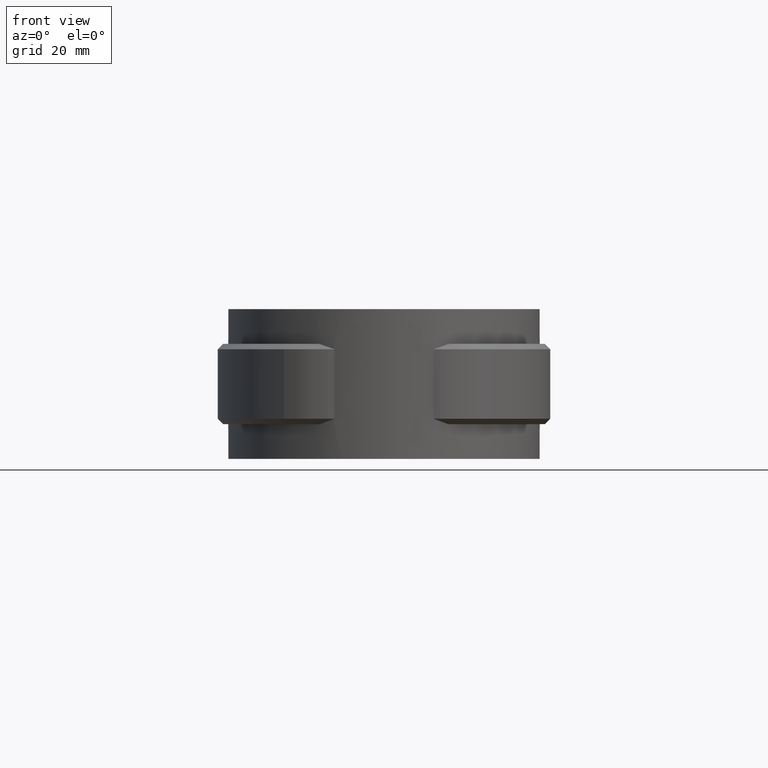
[diagram: clean part render]
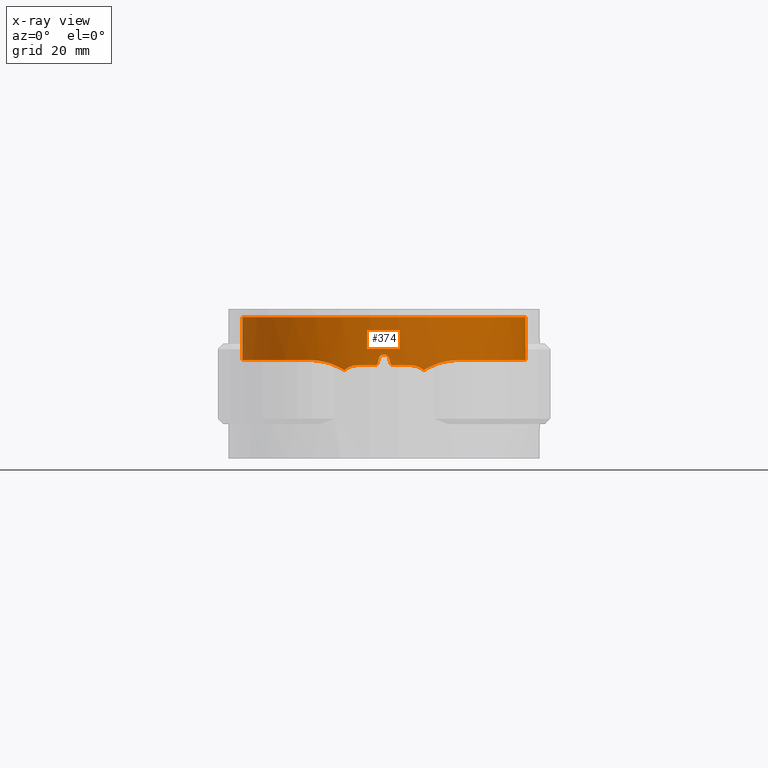
[diagram: x-ray — body ghosted, one internal face saturated and labeled with its STEP entity id]
A machine part, front view, then the same camera in x-ray: the body is ghosted and one INTERNAL B-rep face — a face not visible from any outside direction — is saturated and labeled: STEP entity #374.
In plain terms, the highlighted cylindrical surface (partial cylindrical patch) has radius 26.5 mm, axis along (0, 0, 1).
Its self-contained STEP definition (entity closure, byte-faithful):
#374 = ADVANCED_FACE( '', ( #734 ), #735, .F. );
#734 = FACE_OUTER_BOUND( '', #1663, .T. );
#735 = CYLINDRICAL_SURFACE( '', #1664, 26.5000000000000 );
#1663 = EDGE_LOOP( '', ( #3299, #3300, #3301, #3302, #3303, #3304, #3305, #3306, #3307, #3308, #3309, #3310, #3311, #3312, #3313, #3314, #3315, #3316 ) );
#1664 = AXIS2_PLACEMENT_3D( '', #3317, #3318, #3319 );
#3299 = ORIENTED_EDGE( '', *, *, #7044, .T. );
#3300 = ORIENTED_EDGE( '', *, *, #7009, .T. );
#3301 = ORIENTED_EDGE( '', *, *, #7011, .T. );
#3302 = ORIENTED_EDGE( '', *, *, #7045, .T. );
#3303 = ORIENTED_EDGE( '', *, *, #7046, .T. );
#3304 = ORIENTED_EDGE( '', *, *, #7047, .T. );
#3305 = ORIENTED_EDGE( '', *, *, #7048, .T. );
#3306 = ORIENTED_EDGE( '', *, *, #7049, .T. );
#3307 = ORIENTED_EDGE( '', *, *, #7050, .T. );
#3308 = ORIENTED_EDGE( '', *, *, #7051, .T. );
#3309 = ORIENTED_EDGE( '', *, *, #7052, .T. );
#3310 = ORIENTED_EDGE( '', *, *, #7053, .T. );
#3311 = ORIENTED_EDGE( '', *, *, #7031, .T. );
#3312 = ORIENTED_EDGE( '', *, *, #7054, .F. );
#3313 = ORIENTED_EDGE( '', *, *, #6996, .T. );
#3314 = ORIENTED_EDGE( '', *, *, #7055, .T. );
#3315 = ORIENTED_EDGE( '', *, *, #7027, .T. );
#3316 = ORIENTED_EDGE( '', *, *, #7039, .T. );
#3317 = CARTESIAN_POINT( '', ( 0.000000000000000, 0.000000000000000, 0.000000000000000 ) );
#3318 = DIRECTION( '', ( 0.000000000000000, 0.000000000000000, 1.00000000000000 ) );
#3319 = DIRECTION( '', ( 1.00000000000000, -6.12303176911189E-017, 0.000000000000000 ) );
#6996 = EDGE_CURVE( '', #7994, #7992, #7995, .T. );
#7009 = EDGE_CURVE( '', #8000, #8017, #8019, .T. );
#7011 = EDGE_CURVE( '', #8017, #8020, #8022, .T. );
#7027 = EDGE_CURVE( '', #8050, #8048, #8051, .T. );
#7031 = EDGE_CURVE( '', #8057, #8058, #8059, .T. );
#7039 = EDGE_CURVE( '', #8048, #8071, #8073, .T. );
#7044 = EDGE_CURVE( '', #8071, #8000, #8081, .T. );
#7045 = EDGE_CURVE( '', #8020, #8082, #8083, .T. );
#7046 = EDGE_CURVE( '', #8082, #8084, #8085, .T. );
#7047 = EDGE_CURVE( '', #8084, #8086, #8087, .T. );
#7048 = EDGE_CURVE( '', #8086, #8088, #8089, .T. );
#7049 = EDGE_CURVE( '', #8088, #8090, #8091, .T. );
#7050 = EDGE_CURVE( '', #8090, #8092, #8093, .T. );
#7051 = EDGE_CURVE( '', #8092, #8094, #8095, .T. );
#7052 = EDGE_CURVE( '', #8094, #8096, #8097, .T. );
#7053 = EDGE_CURVE( '', #8096, #8057, #8098, .T. );
#7054 = EDGE_CURVE( '', #7994, #8058, #8099, .T. );
#7055 = EDGE_CURVE( '', #7992, #8050, #8100, .T. );
#7992 = VERTEX_POINT( '', #9768 );
#7994 = VERTEX_POINT( '', #9770 );
#7995 = CIRCLE( '', #9771, 26.5000000000000 );
#8000 = VERTEX_POINT( '', #9777 );
#8017 = VERTEX_POINT( '', #9853 );
#8019 = B_SPLINE_CURVE_WITH_KNOTS( '', 3, ( #9856, #9857, #9858, #9859, #9860, #9861, #9862, #9863, #9864, #9865 ), .UNSPECIFIED., .F., .F., ( 4, 2, 2, 2, 4 ), ( 0.00840987655506248, 0.00908564043803560, 0.00976140432100873, 0.0104371682039819, 0.0111129320869550 ), .UNSPECIFIED. );
#8020 = VERTEX_POINT( '', #9866 );
#8022 = CIRCLE( '', #9869, 26.5000000000000 );
#8048 = VERTEX_POINT( '', #10157 );
#8050 = VERTEX_POINT( '', #10165 );
#8051 = B_SPLINE_CURVE_WITH_KNOTS( '', 3, ( #10166, #10167, #10168, #10169, #10170, #10171, #10172, #10173, #10174, #10175, #10176, #10177, #10178, #10179, #10180, #10181, #10182, #10183, #10184, #10185, #10186, #10187, #10188, #10189, #10190, #10191, #10192, #10193, #10194, #10195, #10196, #10197, #10198, #10199, #10200, #10201, #10202, #10203, #10204, #10205, #10206, #10207, #10208, #10209 ), .UNSPECIFIED., .F., .F., ( 4, 2, 2, 2, 2, 2, 2, 2, 2, 2, 2, 2, 2, 2, 2, 2, 2, 2, 2, 2, 2, 4 ), ( 8.54252242016652E-018, 0.00386953894842184, 0.00773907789684368, 0.00967384737105459, 0.0116086168452655, 0.0154781557936874, 0.0174129252678983, 0.0193476947421092, 0.0232172336905310, 0.0251520031647420, 0.0270867726389529, 0.0309563115873747, 0.0348258505357966, 0.0367606200100075, 0.0386953894842184, 0.0425649284326403, 0.0464344673810622, 0.0503040063294840, 0.0522387758036949, 0.0541735452779059, 0.0580430842263277, 0.0619126231747495 ), .UNSPECIFIED. );
#8057 = VERTEX_POINT( '', #10245 );
#8058 = VERTEX_POINT( '', #10246 );
#8059 = B_SPLINE_CURVE_WITH_KNOTS( '', 3, ( #10247, #10248, #10249, #10250, #10251, #10252, #10253, #10254, #10255, #10256, #10257, #10258, #10259, #10260, #10261, #10262, #10263, #10264, #10265, #10266, #10267, #10268, #10269, #10270, #10271, #10272, #10273, #10274, #10275, #10276, #10277, #10278, #10279, #10280, #10281, #10282, #10283, #10284, #10285, #10286, #10287, #10288, #10289, #10290 ), .UNSPECIFIED., .F., .F., ( 4, 2, 2, 2, 2, 2, 2, 2, 2, 2, 2, 2, 2, 2, 2, 2, 2, 2, 2, 2, 2, 4 ), ( 9.81307786677359E-018, 0.00386953623061383, 0.00773907246122765, 0.00967384057653457, 0.0116086086918415, 0.0154781449224553, 0.0174129130377622, 0.0193476811530691, 0.0232172173836830, 0.0251519854989899, 0.0270867536142968, 0.0309562898449107, 0.0348258260755245, 0.0367605941908314, 0.0386953623061383, 0.0425648985367521, 0.0464344347673660, 0.0503039709979798, 0.0522387391132867, 0.0541735072285936, 0.0580430434592075, 0.0619125796898213 ), .UNSPECIFIED. );
#8071 = VERTEX_POINT( '', #10385 );
#8073 = B_SPLINE_CURVE_WITH_KNOTS( '', 3, ( #10391, #10392, #10393, #10394, #10395, #10396, #10397, #10398, #10399, #10400 ), .UNSPECIFIED., .F., .F., ( 4, 2, 2, 2, 4 ), ( 1.73472347597681E-018, 0.00167477549789548, 0.00334955099579095, 0.00502432649368643, 0.00669910199158190 ), .UNSPECIFIED. );
#8081 = B_SPLINE_CURVE_WITH_KNOTS( '', 3, ( #10429, #10430, #10431, #10432 ), .UNSPECIFIED., .F., .F., ( 4, 4 ), ( 5.06069652024954E-015, 0.00108053833113796 ), .UNSPECIFIED. );
#8082 = VERTEX_POINT( '', #10433 );
#8083 = B_SPLINE_CURVE_WITH_KNOTS( '', 3, ( #10434, #10435, #10436, #10437, #10438, #10439 ), .UNSPECIFIED., .F., .F., ( 4, 2, 4 ), ( 8.20849171219253E-018, 0.000336060167012381, 0.000672120334024754 ), .UNSPECIFIED. );
#8084 = VERTEX_POINT( '', #10440 );
#8085 = ELLIPSE( '', #10441, 120.722283805419, 26.5000000000000 );
#8086 = VERTEX_POINT( '', #10442 );
#8087 = B_SPLINE_CURVE_WITH_KNOTS( '', 3, ( #10443, #10444, #10445, #10446, #10447, #10448, #10449, #10450, #10451, #10452 ), .UNSPECIFIED., .F., .F., ( 4, 2, 2, 2, 4 ), ( 0.000000000000000, 0.000671613818563088, 0.00134322763712618, 0.00201484145568926, 0.00268645527425235 ), .UNSPECIFIED. );
#8088 = VERTEX_POINT( '', #10453 );
#8089 = ELLIPSE( '', #10454, 120.722345388658, 26.5000000000000 );
#8090 = VERTEX_POINT( '', #10455 );
#8091 = B_SPLINE_CURVE_WITH_KNOTS( '', 3, ( #10456, #10457, #10458, #10459, #10460, #10461 ), .UNSPECIFIED., .F., .F., ( 4, 2, 4 ), ( 2.04566856771261E-018, 0.000336065636993404, 0.000672131273986805 ), .UNSPECIFIED. );
#8092 = VERTEX_POINT( '', #10462 );
#8093 = CIRCLE( '', #10463, 26.5000000000000 );
#8094 = VERTEX_POINT( '', #10464 );
#8095 = B_SPLINE_CURVE_WITH_KNOTS( '', 3, ( #10465, #10466, #10467, #10468, #10469, #10470, #10471, #10472, #10473, #10474 ), .UNSPECIFIED., .F., .F., ( 4, 2, 2, 2, 4 ), ( 3.46944695195361E-018, 0.000676414896825245, 0.00135282979365049, 0.00202924469047573, 0.00270565958730097 ), .UNSPECIFIED. );
#8096 = VERTEX_POINT( '', #10475 );
#8097 = B_SPLINE_CURVE_WITH_KNOTS( '', 3, ( #10476, #10477, #10478, #10479 ), .UNSPECIFIED., .F., .F., ( 4, 4 ), ( 0.00823762377729506, 0.00931491977660899 ), .UNSPECIFIED. );
#8098 = B_SPLINE_CURVE_WITH_KNOTS( '', 3, ( #10480, #10481, #10482, #10483, #10484, #10485, #10486, #10487, #10488, #10489 ), .UNSPECIFIED., .F., .F., ( 4, 2, 2, 2, 4 ), ( 0.000000000000000, 0.00166699003343401, 0.00333398006686803, 0.00500097010030204, 0.00666796013373606 ), .UNSPECIFIED. );
#8099 = LINE( '', #10490, #10491 );
#8100 = LINE( '', #10492, #10493 );
#9768 = CARTESIAN_POINT( '', ( 6.04385964912280, 25.8015844579690, 0.000000000000000 ) );
#9770 = CARTESIAN_POINT( '', ( -6.04385964912280, 25.8015844579689, 0.000000000000000 ) );
#9771 = AXIS2_PLACEMENT_3D( '', #13752, #13753, #13754 );
#9777 = CARTESIAN_POINT( '', ( 7.40905339638873, -25.4431902042464, -9.96101167128564 ) );
#9853 = CARTESIAN_POINT( '', ( 5.00000000000000, -26.0240273593462, -9.00000000000000 ) );
#9856 = CARTESIAN_POINT( '', ( 7.40905339638874, -25.4431902042464, -9.96101167128563 ) );
#9857 = CARTESIAN_POINT( '', ( 7.24763662634430, -25.4901947449008, -9.80785554460639 ) );
#9858 = CARTESIAN_POINT( '', ( 7.07408541333312, -25.5390720899026, -9.67215739365102 ) );
#9859 = CARTESIAN_POINT( '', ( 6.70316743055003, -25.6389241983042, -9.43442585938661 ) );
#9860 = CARTESIAN_POINT( '', ( 6.50370235312272, -25.6903936464893, -9.33179261985578 ) );
#9861 = CARTESIAN_POINT( '', ( 6.09403154520617, -25.7906426739549, -9.16807056670148 ) );
#9862 = CARTESIAN_POINT( '', ( 5.88307014533556, -25.8396775127156, -9.10601312208062 ) );
#9863 = CARTESIAN_POINT( '', ( 5.44861472041516, -25.9347651989478, -9.02182452402143 ) );
#9864 = CARTESIAN_POINT( '', ( 5.22445617697157, -25.9809025628126, -8.99999999999997 ) );
#9865 = CARTESIAN_POINT( '', ( 5.00000000000000, -26.0240273593462, -8.99999999999997 ) );
#9866 = CARTESIAN_POINT( '', ( 1.64999999999995, -26.4485821926242, -9.00000000000000 ) );
#9869 = AXIS2_PLACEMENT_3D( '', #13762, #13763, #13764 );
#10157 = CARTESIAN_POINT( '', ( 14.1618058989693, -22.3985100772333, -8.00447351404854 ) );
#10165 = CARTESIAN_POINT( '', ( 6.04385964912280, 25.8015844579689, -8.00552652639570 ) );
#10166 = CARTESIAN_POINT( '', ( 6.04385964912279, 25.8015844579690, -8.00552652639571 ) );
#10167 = CARTESIAN_POINT( '', ( 7.31779231474490, 25.5031737054822, -8.00680066398224 ) );
#10168 = CARTESIAN_POINT( '', ( 8.55377131480695, 25.1146868430128, -8.00847257392849 ) );
#10169 = CARTESIAN_POINT( '', ( 10.9529568115040, 24.1650002278904, -8.00944311649381 ) );
#10170 = CARTESIAN_POINT( '', ( 12.1161555429383, 23.6037820474472, -8.00874950359412 ) );
#10171 = CARTESIAN_POINT( '', ( 13.8051154540246, 22.6294327220562, -8.00678965374482 ) );
#10172 = CARTESIAN_POINT( '', ( 14.3608898139389, 22.2809092139690, -8.00601381780461 ) );
#10173 = CARTESIAN_POINT( '', ( 15.4379518302976, 21.5486360342049, -8.00479323261608 ) );
#10174 = CARTESIAN_POINT( '', ( 15.9602317834641, 21.1645629288973, -8.00438617796553 ) );
#10175 = CARTESIAN_POINT( '', ( 17.4794092076718, 19.9597380735161, -8.00454912951534 ) );
#10176 = CARTESIAN_POINT( '', ( 18.4288934061812, 19.0866556816490, -8.00595118561516 ) );
#10177 = CARTESIAN_POINT( '', ( 19.7578578109826, 17.6718897982799, -8.00708829540483 ) );
#10178 = CARTESIAN_POINT( '', ( 20.1849069197854, 17.1827089807674, -8.00733281936726 ) );
#10179 = CARTESIAN_POINT( '', ( 21.0062871984815, 16.1682359400479, -8.00740043787067 ) );
#10180 = CARTESIAN_POINT( '', ( 21.3987785267263, 15.6449107649844, -8.00722156171388 ) );
#10181 = CARTESIAN_POINT( '', ( 22.5087542741972, 14.0459888275849, -8.00621991817574 ) );
#10182 = CARTESIAN_POINT( '', ( 23.1649197282694, 12.9345445054854, -8.00482859728281 ) );
#10183 = CARTESIAN_POINT( '', ( 24.0254370712677, 11.2002169813777, -8.00436251705780 ) );
#10184 = CARTESIAN_POINT( '', ( 24.2915715128740, 10.6108693042291, -8.00461391317133 ) );
#10185 = CARTESIAN_POINT( '', ( 24.7817570326879, 9.40933113081498, -8.00557514383928 ) );
#10186 = CARTESIAN_POINT( '', ( 25.0065066405602, 8.79491476540917, -8.00623559022311 ) );
#10187 = CARTESIAN_POINT( '', ( 25.6104144339813, 6.93255168754606, -8.00796130609826 ) );
#10188 = CARTESIAN_POINT( '', ( 25.9172186839002, 5.67552279830801, -8.00863062021383 ) );
#10189 = CARTESIAN_POINT( '', ( 26.3459037111436, 3.13163551301321, -8.00788011598070 ) );
#10190 = CARTESIAN_POINT( '', ( 26.4677781884327, 1.84477610037728, -8.00646204217055 ) );
#10191 = CARTESIAN_POINT( '', ( 26.5077788053885, -0.108549885981639, -8.00484173662064 ) );
#10192 = CARTESIAN_POINT( '', ( 26.4969434753126, -0.764447916137473, -8.00443077871599 ) );
#10193 = CARTESIAN_POINT( '', ( 26.4276135288668, -2.06243480363791, -8.00450773618915 ) );
#10194 = CARTESIAN_POINT( '', ( 26.3692655960067, -2.70718132964275, -8.00491787987703 ) );
#10195 = CARTESIAN_POINT( '', ( 26.1245298605475, -4.62892372615886, -8.00633721979146 ) );
#10196 = CARTESIAN_POINT( '', ( 25.8688178453335, -5.89348838506353, -8.00742318277941 ) );
#10197 = CARTESIAN_POINT( '', ( 25.1704587203925, -8.38909708281753, -8.00767238813466 ) );
#10198 = CARTESIAN_POINT( '', ( 24.7233592121334, -9.62726296960624, -8.00681220864018 ) );
#10199 = CARTESIAN_POINT( '', ( 23.6662931529846, -11.9931335111023, -8.00482427667010 ) );
#10200 = CARTESIAN_POINT( '', ( 23.0551282017821, -13.1293258732354, -8.00406436445866 ) );
#10201 = CARTESIAN_POINT( '', ( 22.0155994256891, -14.7641598304526, -8.00536898848297 ) );
#10202 = CARTESIAN_POINT( '', ( 21.6485450174016, -15.2974827624214, -8.00601557135876 ) );
#10203 = CARTESIAN_POINT( '', ( 20.8725389324576, -16.3404283527111, -8.00717334363293 ) );
#10204 = CARTESIAN_POINT( '', ( 20.4618330437027, -16.8519314073990, -8.00768400690040 ) );
#10205 = CARTESIAN_POINT( '', ( 19.1829793855405, -18.3292148376876, -8.00852119271223 ) );
#10206 = CARTESIAN_POINT( '', ( 18.2664723389414, -19.2419828651324, -8.00802917772844 ) );
#10207 = CARTESIAN_POINT( '', ( 16.3088351287658, -20.9270115648196, -8.00585567480092 ) );
#10208 = CARTESIAN_POINT( '', ( 15.2677140476224, -21.6992824728386, -8.00416630566739 ) );
#10209 = CARTESIAN_POINT( '', ( 14.1618058989693, -22.3985100772332, -8.00447351404850 ) );
#10245 = CARTESIAN_POINT( '', ( -14.1618058989693, -22.3985100772333, -8.00447351404854 ) );
#10246 = CARTESIAN_POINT( '', ( -6.04385964912280, 25.8015844579690, -8.00552652639572 ) );
#10247 = CARTESIAN_POINT( '', ( -14.1618058989693, -22.3985100772333, -8.00447351404859 ) );
#10248 = CARTESIAN_POINT( '', ( -15.2677141178028, -21.6992824284660, -8.00416630564798 ) );
#10249 = CARTESIAN_POINT( '', ( -16.3082572931515, -20.9273801539132, -8.00585467293532 ) );
#10250 = CARTESIAN_POINT( '', ( -18.2640135401887, -19.2442278475867, -8.00802680755530 ) );
#10251 = CARTESIAN_POINT( '', ( -19.1792132196127, -18.3329629301038, -8.00851990508117 ) );
#10252 = CARTESIAN_POINT( '', ( -20.4558474097879, -16.8591442287993, -8.00768978457968 ) );
#10253 = CARTESIAN_POINT( '', ( -20.8668016576144, -16.3478029175757, -8.00718114852691 ) );
#10254 = CARTESIAN_POINT( '', ( -21.6445879843552, -15.3031330987358, -8.00602222067530 ) );
#10255 = CARTESIAN_POINT( '', ( -22.0122514376959, -14.7691742862876, -8.00537430097886 ) );
#10256 = CARTESIAN_POINT( '', ( -23.0529776806001, -13.1332063822245, -8.00406485606809 ) );
#10257 = CARTESIAN_POINT( '', ( -23.6641017592584, -11.9972839982562, -8.00482074789871 ) );
#10258 = CARTESIAN_POINT( '', ( -24.4563415853714, -10.2252623492735, -8.00630975782249 ) );
#10259 = CARTESIAN_POINT( '', ( -24.6995994326919, -9.62318774525237, -8.00680402810913 ) );
#10260 = CARTESIAN_POINT( '', ( -25.1433737712504, -8.39563636152793, -8.00745586914274 ) );
#10261 = CARTESIAN_POINT( '', ( -25.3427966647617, -7.77261941817447, -8.00760940230871 ) );
#10262 = CARTESIAN_POINT( '', ( -25.8678086759155, -5.89832992898656, -8.00742649565478 ) );
#10263 = CARTESIAN_POINT( '', ( -26.1237196597578, -4.63327268852307, -8.00634124430697 ) );
#10264 = CARTESIAN_POINT( '', ( -26.3686825406503, -2.71276007736838, -8.00492159637479 ) );
#10265 = CARTESIAN_POINT( '', ( -26.4270932018386, -2.06875271919096, -8.00451102121247 ) );
#10266 = CARTESIAN_POINT( '', ( -26.4966706716150, -0.772939992366890, -8.00442840486913 ) );
#10267 = CARTESIAN_POINT( '', ( -26.5077684204037, -0.118803319916939, -8.00483442167483 ) );
#10268 = CARTESIAN_POINT( '', ( -26.4683402519840, 1.83863202939378, -8.00645458891863 ) );
#10269 = CARTESIAN_POINT( '', ( -26.3464769226068, 3.12680952911331, -8.00787649080952 ) );
#10270 = CARTESIAN_POINT( '', ( -25.9182577615873, 5.67077584363223, -8.00863141288229 ) );
#10271 = CARTESIAN_POINT( '', ( -25.6118956117254, 6.92656354911355, -8.00796535784128 ) );
#10272 = CARTESIAN_POINT( '', ( -25.0098743546600, 8.78523218933770, -8.00624530325514 ) );
#10273 = CARTESIAN_POINT( '', ( -24.7847960316900, 9.40139780989538, -8.00558284396464 ) );
#10274 = CARTESIAN_POINT( '', ( -24.2941322376875, 10.6050711421534, -8.00461721360461 ) );
#10275 = CARTESIAN_POINT( '', ( -24.0278149582166, 11.1951376846527, -8.00436282436010 ) );
#10276 = CARTESIAN_POINT( '', ( -23.1671094778436, 12.9307013042653, -8.00482424000699 ) );
#10277 = CARTESIAN_POINT( '', ( -22.5112934490799, 14.0417452017999, -8.00621533072276 ) );
#10278 = CARTESIAN_POINT( '', ( -21.0340195413065, 16.1709295650804, -8.00755300473749 ) );
#10279 = CARTESIAN_POINT( '', ( -20.2060213654398, 17.1943416782269, -8.00747031112457 ) );
#10280 = CARTESIAN_POINT( '', ( -18.4323236097516, 19.0834517714594, -8.00595556276425 ) );
#10281 = CARTESIAN_POINT( '', ( -17.4827124231103, 19.9567757982323, -8.00455357607073 ) );
#10282 = CARTESIAN_POINT( '', ( -15.9650382017137, 21.1609212630344, -8.00438466043226 ) );
#10283 = CARTESIAN_POINT( '', ( -15.4435421604334, 21.5445929505580, -8.00478820519925 ) );
#10284 = CARTESIAN_POINT( '', ( -14.3687274561696, 22.2758198761939, -8.00600364412580 ) );
#10285 = CARTESIAN_POINT( '', ( -13.8131352438494, 22.6245773327820, -8.00677936172626 ) );
#10286 = CARTESIAN_POINT( '', ( -12.1209426110322, 23.6014738782921, -8.00874590251574 ) );
#10287 = CARTESIAN_POINT( '', ( -10.9560158421460, 24.1636842561059, -8.00944332977003 ) );
#10288 = CARTESIAN_POINT( '', ( -8.55443797688889, 25.1145278845073, -8.00847386621936 ) );
#10289 = CARTESIAN_POINT( '', ( -7.31779209674581, 25.5031737565471, -8.00680066376420 ) );
#10290 = CARTESIAN_POINT( '', ( -6.04385964912279, 25.8015844579690, -8.00552652639571 ) );
#10385 = CARTESIAN_POINT( '', ( 8.30733075074126, -25.1642257142460, -9.42766544081171 ) );
#10391 = CARTESIAN_POINT( '', ( 14.1618058989693, -22.3985100772333, -8.00447351404855 ) );
#10392 = CARTESIAN_POINT( '', ( 13.6884707807184, -22.6977835577782, -8.01309154205237 ) );
#10393 = CARTESIAN_POINT( '', ( 13.2078832355863, -22.9806575992301, -8.04385975464359 ) );
#10394 = CARTESIAN_POINT( '', ( 12.2328947523145, -23.5141465768318, -8.15389368339818 ) );
#10395 = CARTESIAN_POINT( '', ( 11.7370700934644, -23.7653437069035, -8.23345133159799 ) );
#10396 = CARTESIAN_POINT( '', ( 10.7444376197388, -24.2302999593834, -8.45110890051173 ) );
#10397 = CARTESIAN_POINT( '', ( 10.2444889412924, -24.4454753339551, -8.58968989647531 ) );
#10398 = CARTESIAN_POINT( '', ( 9.25901358741712, -24.8354884260265, -8.94342323706796 ) );
#10399 = CARTESIAN_POINT( '', ( 8.77451567882577, -25.0099964618424, -9.15687443275151 ) );
#10400 = CARTESIAN_POINT( '', ( 8.30733075074207, -25.1642257142511, -9.42766544082033 ) );
#10429 = CARTESIAN_POINT( '', ( 8.30733075074207, -25.1642257142511, -9.42766544082034 ) );
#10430 = CARTESIAN_POINT( '', ( 8.00463479929116, -25.2641531037987, -9.59715513122759 ) );
#10431 = CARTESIAN_POINT( '', ( 7.70459572691002, -25.3571283193119, -9.77398326207533 ) );
#10432 = CARTESIAN_POINT( '', ( 7.40905339638874, -25.4431902042464, -9.96101167128564 ) );
#10433 = CARTESIAN_POINT( '', ( 1.16219499999999, -26.4745028807337, -8.60975599999999 ) );
#10434 = CARTESIAN_POINT( '', ( 1.64999999999995, -26.4485821926242, -8.99999999999995 ) );
#10435 = CARTESIAN_POINT( '', ( 1.53658985016263, -26.4556573071188, -9.00000000048670 ) );
#10436 = CARTESIAN_POINT( '', ( 1.42647361285897, -26.4617281385548, -8.96143624100054 ) );
#10437 = CARTESIAN_POINT( '', ( 1.24912698353641, -26.4706925641542, -8.81966906383137 ) );
#10438 = CARTESIAN_POINT( '', ( 1.18713824945011, -26.4734079056958, -8.72061488866670 ) );
#10439 = CARTESIAN_POINT( '', ( 1.16219499999999, -26.4745028807337, -8.60975599999999 ) );
#10440 = CARTESIAN_POINT( '', ( 0.975609757981813, -26.4820351483818, -7.78048781325256 ) );
#10441 = AXIS2_PLACEMENT_3D( '', #13765, #13766, #13767 );
#10442 = CARTESIAN_POINT( '', ( -0.975610000000026, -26.4820351394658, -7.78048800000004 ) );
#10443 = CARTESIAN_POINT( '', ( 0.975609757981815, -26.4820351483818, -7.78048781325256 ) );
#10444 = CARTESIAN_POINT( '', ( 0.925760934745036, -26.4838716008335, -7.55893757788718 ) );
#10445 = CARTESIAN_POINT( '', ( 0.802002648933445, -26.4884549042838, -7.36098152096842 ) );
#10446 = CARTESIAN_POINT( '', ( 0.447409999263894, -26.4968163324904, -7.07729898640315 ) );
#10447 = CARTESIAN_POINT( '', ( 0.227095065698496, -26.5000000074918, -6.99999982074384 ) );
#10448 = CARTESIAN_POINT( '', ( -0.227096814142785, -26.4999999925082, -7.00000017238921 ) );
#10449 = CARTESIAN_POINT( '', ( -0.447437696300520, -26.4968157672137, -7.07731617470090 ) );
#10450 = CARTESIAN_POINT( '', ( -0.802001188535608, -26.4884548508841, -7.36098500294529 ) );
#10451 = CARTESIAN_POINT( '', ( -0.925761217195687, -26.4838715908841, -7.55893774631123 ) );
#10452 = CARTESIAN_POINT( '', ( -0.975610000000026, -26.4820351394658, -7.78048800000004 ) );
#10453 = CARTESIAN_POINT( '', ( -1.16219512100914, -26.4745028754215, -8.60975609337373 ) );
#10454 = AXIS2_PLACEMENT_3D( '', #13768, #13769, #13770 );
#10455 = CARTESIAN_POINT( '', ( -1.65000000000003, -26.4485821926242, -9.00000000000000 ) );
#10456 = CARTESIAN_POINT( '', ( -1.16219512100915, -26.4745028754215, -8.60975609337372 ) );
#10457 = CARTESIAN_POINT( '', ( -1.18713836233016, -26.4734079006263, -8.72061494813270 ) );
#10458 = CARTESIAN_POINT( '', ( -1.24912139695326, -26.4706928381728, -8.81966360564067 ) );
#10459 = CARTESIAN_POINT( '', ( -1.42647421663325, -26.4617281164043, -8.96143764402375 ) );
#10460 = CARTESIAN_POINT( '', ( -1.53658988103453, -26.4556573051929, -8.99999999999994 ) );
#10461 = CARTESIAN_POINT( '', ( -1.65000000000003, -26.4485821926242, -8.99999999999994 ) );
#10462 = CARTESIAN_POINT( '', ( -5.00000000000005, -26.0240273593462, -9.00000000000000 ) );
#10463 = AXIS2_PLACEMENT_3D( '', #13771, #13772, #13773 );
#10464 = CARTESIAN_POINT( '', ( -7.40905339637111, -25.4431902042387, -9.96101167126881 ) );
#10465 = CARTESIAN_POINT( '', ( -5.00000000000005, -26.0240273593462, -8.99999999999997 ) );
#10466 = CARTESIAN_POINT( '', ( -5.22465831940560, -25.9808637251586, -8.99999999999997 ) );
#10467 = CARTESIAN_POINT( '', ( -5.44511352916355, -25.9354941134036, -9.02142480651077 ) );
#10468 = CARTESIAN_POINT( '', ( -5.87812327510128, -25.8407968726698, -9.10478116400010 ) );
#10469 = CARTESIAN_POINT( '', ( -6.09242669101966, -25.7910319178135, -9.16745930223137 ) );
#10470 = CARTESIAN_POINT( '', ( -6.50448899229102, -25.6902046181086, -9.33207695017514 ) );
#10471 = CARTESIAN_POINT( '', ( -6.70009805336685, -25.6397270549142, -9.43272598848543 ) );
#10472 = CARTESIAN_POINT( '', ( -7.07117712777611, -25.5398780616284, -9.67003029024133 ) );
#10473 = CARTESIAN_POINT( '', ( -7.24827164238528, -25.4900098283191, -9.80845806315192 ) );
#10474 = CARTESIAN_POINT( '', ( -7.40905339637287, -25.4431902042510, -9.96101167127047 ) );
#10475 = CARTESIAN_POINT( '', ( -8.30733075074207, -25.1642257142511, -9.42766544082034 ) );
#10476 = CARTESIAN_POINT( '', ( -7.40905339638529, -25.4431902042474, -9.96101167128776 ) );
#10477 = CARTESIAN_POINT( '', ( -7.70483756064786, -25.3570578973616, -9.77383022213940 ) );
#10478 = CARTESIAN_POINT( '', ( -8.00486228869394, -25.2640780039434, -9.59702775222478 ) );
#10479 = CARTESIAN_POINT( '', ( -8.30733075074208, -25.1642257142511, -9.42766544082033 ) );
#10480 = CARTESIAN_POINT( '', ( -8.30733075074207, -25.1642257142511, -9.42766544082034 ) );
#10481 = CARTESIAN_POINT( '', ( -8.77575182529439, -25.0095883794445, -9.15615793414844 ) );
#10482 = CARTESIAN_POINT( '', ( -9.25938621032882, -24.8352920527789, -8.94340781263706 ) );
#10483 = CARTESIAN_POINT( '', ( -10.2398750389022, -24.4473500307604, -8.59122822578753 ) );
#10484 = CARTESIAN_POINT( '', ( -10.7390116837787, -24.2327306782470, -8.45247219969515 ) );
#10485 = CARTESIAN_POINT( '', ( -11.7337627867504, -23.7670027334761, -8.23400451403674 ) );
#10486 = CARTESIAN_POINT( '', ( -12.2293522364927, -23.5160205977103, -8.15437052766032 ) );
#10487 = CARTESIAN_POINT( '', ( -13.2067246511624, -22.9813555924041, -8.04391383047819 ) );
#10488 = CARTESIAN_POINT( '', ( -13.6880782014882, -22.6980317720942, -8.01309868975524 ) );
#10489 = CARTESIAN_POINT( '', ( -14.1618058989693, -22.3985100772333, -8.00447351404851 ) );
#10490 = CARTESIAN_POINT( '', ( -6.04385964912280, 25.8015844579689, 0.000000000000000 ) );
#10491 = VECTOR( '', #13774, 1000.00000000000 );
#10492 = CARTESIAN_POINT( '', ( 6.04385964912280, 25.8015844579690, 0.000000000000000 ) );
#10493 = VECTOR( '', #13775, 1000.00000000000 );
#13752 = CARTESIAN_POINT( '', ( 0.000000000000000, 0.000000000000000, 0.000000000000000 ) );
#13753 = DIRECTION( '', ( 0.000000000000000, 0.000000000000000, 1.00000000000000 ) );
#13754 = DIRECTION( '', ( 1.00000000000000, -6.12303176911189E-017, 0.000000000000000 ) );
#13762 = CARTESIAN_POINT( '', ( 0.000000000000000, 0.000000000000000, -9.00000000000001 ) );
#13763 = DIRECTION( '', ( 6.12303176911189E-017, -3.13145149531439E-016, -1.00000000000000 ) );
#13764 = DIRECTION( '', ( 0.000000000000000, 1.00000000000000, -3.13145149531439E-016 ) );
#13765 = CARTESIAN_POINT( '', ( 0.000000000000000, 0.000000000000000, -3.44444212055032 ) );
#13766 = DIRECTION( '', ( -0.975609781292647, -1.70596433957388E-016, -0.219512083143762 ) );
#13767 = DIRECTION( '', ( 0.219512083143762, 3.83841770684855E-017, -0.975609781292647 ) );
#13768 = CARTESIAN_POINT( '', ( 0.000000000000000, 0.000000000000000, -3.44443890776446 ) );
#13769 = DIRECTION( '', ( 0.975609806487711, 3.31181834532395E-017, -0.219511971165610 ) );
#13770 = DIRECTION( '', ( -0.219511971165610, -7.45158328965245E-018, -0.975609806487711 ) );
#13771 = CARTESIAN_POINT( '', ( 0.000000000000000, 0.000000000000000, -9.00000000000001 ) );
#13772 = DIRECTION( '', ( 6.12303176911189E-017, -3.13145149531439E-016, -1.00000000000000 ) );
#13773 = DIRECTION( '', ( 0.000000000000000, 1.00000000000000, -3.13145149531439E-016 ) );
#13774 = DIRECTION( '', ( 0.000000000000000, 0.000000000000000, -1.00000000000000 ) );
#13775 = DIRECTION( '', ( 0.000000000000000, 0.000000000000000, -1.00000000000000 ) );